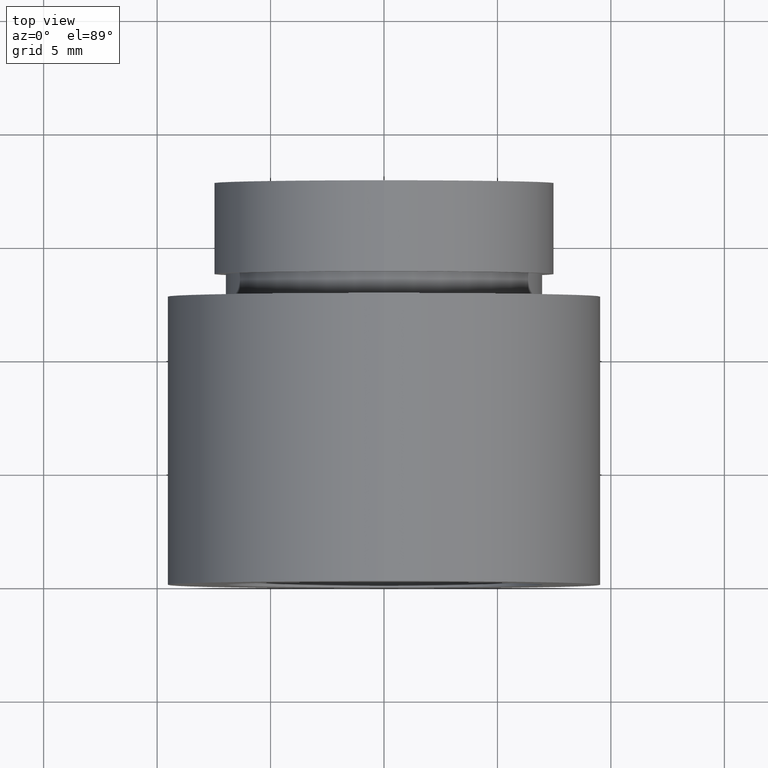
[diagram: clean part render]
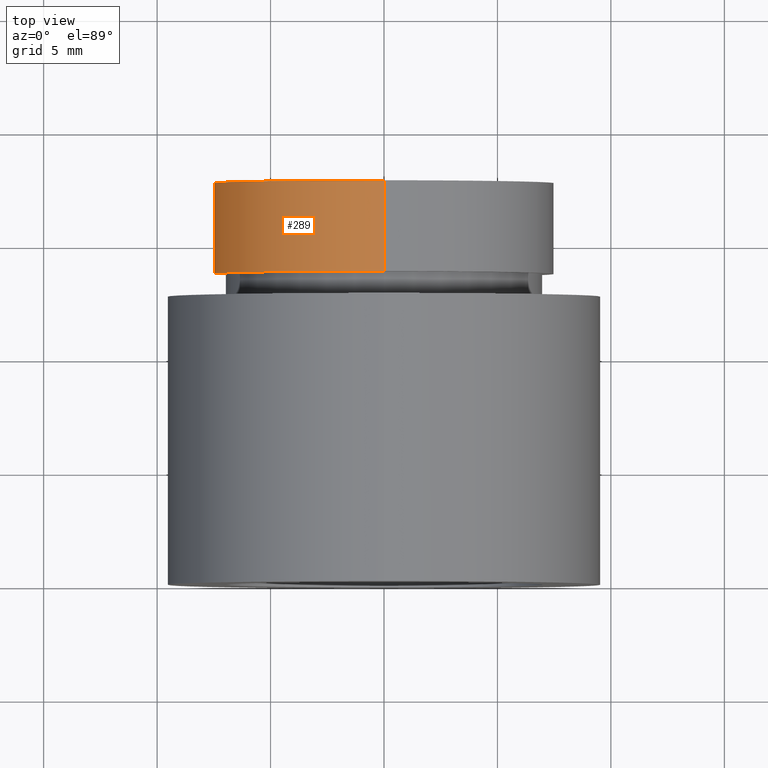
[diagram: same view with one face highlighted and labeled with its STEP entity id]
A machine part, top view. The second image highlights one B-rep face of the part: STEP entity #289.
In plain terms, the highlighted cylindrical surface (partial cylindrical patch) has radius 7.5 mm, axis along (-0, 1, -0).
Its self-contained STEP definition (entity closure, byte-faithful):
#47 = AXIS2_PLACEMENT_3D ( 'NONE', #440, #723, #97 ) ;
#68 = CARTESIAN_POINT ( 'NONE',  ( 0.000000000000000000, 17.69999999999996732, 7.500000000000015099 ) ) ;
#80 = EDGE_CURVE ( 'NONE', #401, #469, #679, .T. ) ;
#97 = DIRECTION ( 'NONE',  ( 0.000000000000000000, 0.000000000000000000, 1.000000000000000000 ) ) ;
#151 = DIRECTION ( 'NONE',  ( -0.000000000000000000, 1.000000000000000000, -0.000000000000000000 ) ) ;
#152 = ORIENTED_EDGE ( 'NONE', *, *, #80, .T. ) ;
#193 = AXIS2_PLACEMENT_3D ( 'NONE', #280, #613, #223 ) ;
#196 = VERTEX_POINT ( 'NONE', #428 ) ;
#212 = VECTOR ( 'NONE', #467, 1000.000000000000000 ) ;
#216 = LINE ( 'NONE', #617, #461 ) ;
#223 = DIRECTION ( 'NONE',  ( 0.000000000000000000, 0.000000000000000000, 1.000000000000000000 ) ) ;
#232 = LINE ( 'NONE', #627, #212 ) ;
#237 = CIRCLE ( 'NONE', #459, 7.500000000000015099 ) ;
#239 = CARTESIAN_POINT ( 'NONE',  ( 0.000000000000000000, 13.69999999999999041, 7.500000000000015987 ) ) ;
#267 = DIRECTION ( 'NONE',  ( -0.000000000000000000, 1.000000000000000000, -0.000000000000000000 ) ) ;
#280 = CARTESIAN_POINT ( 'NONE',  ( 0.000000000000000000, 161.3761669434274495, 0.000000000000000000 ) ) ;
#289 = ADVANCED_FACE ( 'NONE', ( #609 ), #448, .T. ) ;
#350 = EDGE_CURVE ( 'NONE', #469, #354, #216, .T. ) ;
#354 = VERTEX_POINT ( 'NONE', #68 ) ;
#401 = VERTEX_POINT ( 'NONE', #611 ) ;
#413 = EDGE_LOOP ( 'NONE', ( #653, #152, #489, #496 ) ) ;
#428 = CARTESIAN_POINT ( 'NONE',  ( 9.184850993605167666E-16, 17.69999999999996732, -7.500000000000015099 ) ) ;
#440 = CARTESIAN_POINT ( 'NONE',  ( 0.000000000000000000, 13.69999999999999041, 0.000000000000000000 ) ) ;
#448 = CYLINDRICAL_SURFACE ( 'NONE', #193, 7.500000000000015099 ) ;
#459 = AXIS2_PLACEMENT_3D ( 'NONE', #651, #151, #543 ) ;
#461 = VECTOR ( 'NONE', #267, 1000.000000000000000 ) ;
#467 = DIRECTION ( 'NONE',  ( -0.000000000000000000, 1.000000000000000000, -0.000000000000000000 ) ) ;
#468 = EDGE_CURVE ( 'NONE', #401, #196, #232, .T. ) ;
#469 = VERTEX_POINT ( 'NONE', #239 ) ;
#489 = ORIENTED_EDGE ( 'NONE', *, *, #350, .T. ) ;
#496 = ORIENTED_EDGE ( 'NONE', *, *, #587, .F. ) ;
#543 = DIRECTION ( 'NONE',  ( 0.000000000000000000, 0.000000000000000000, 1.000000000000000000 ) ) ;
#587 = EDGE_CURVE ( 'NONE', #196, #354, #237, .T. ) ;
#609 = FACE_OUTER_BOUND ( 'NONE', #413, .T. ) ;
#611 = CARTESIAN_POINT ( 'NONE',  ( 9.184850993605169638E-16, 13.69999999999999041, -7.500000000000016875 ) ) ;
#613 = DIRECTION ( 'NONE',  ( -0.000000000000000000, 1.000000000000000000, -0.000000000000000000 ) ) ;
#617 = CARTESIAN_POINT ( 'NONE',  ( 0.000000000000000000, 161.3761669434274495, 7.500000000000015099 ) ) ;
#627 = CARTESIAN_POINT ( 'NONE',  ( 9.184850993605167666E-16, 161.3761669434274495, -7.500000000000015099 ) ) ;
#651 = CARTESIAN_POINT ( 'NONE',  ( 0.000000000000000000, 17.69999999999996732, 0.000000000000000000 ) ) ;
#653 = ORIENTED_EDGE ( 'NONE', *, *, #468, .F. ) ;
#679 = CIRCLE ( 'NONE', #47, 7.500000000000015987 ) ;
#723 = DIRECTION ( 'NONE',  ( -0.000000000000000000, 1.000000000000000000, -0.000000000000000000 ) ) ;